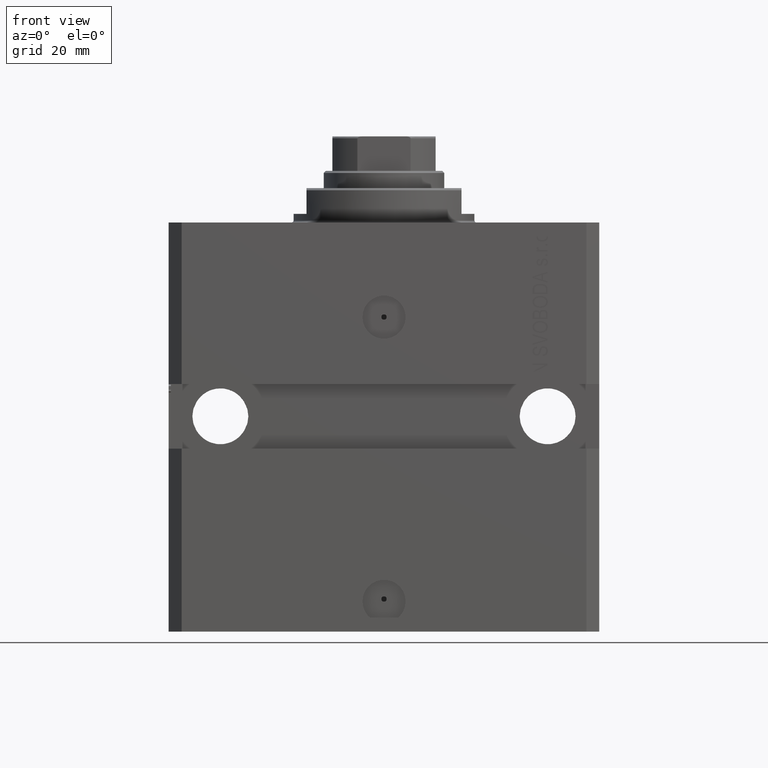
[diagram: clean part render]
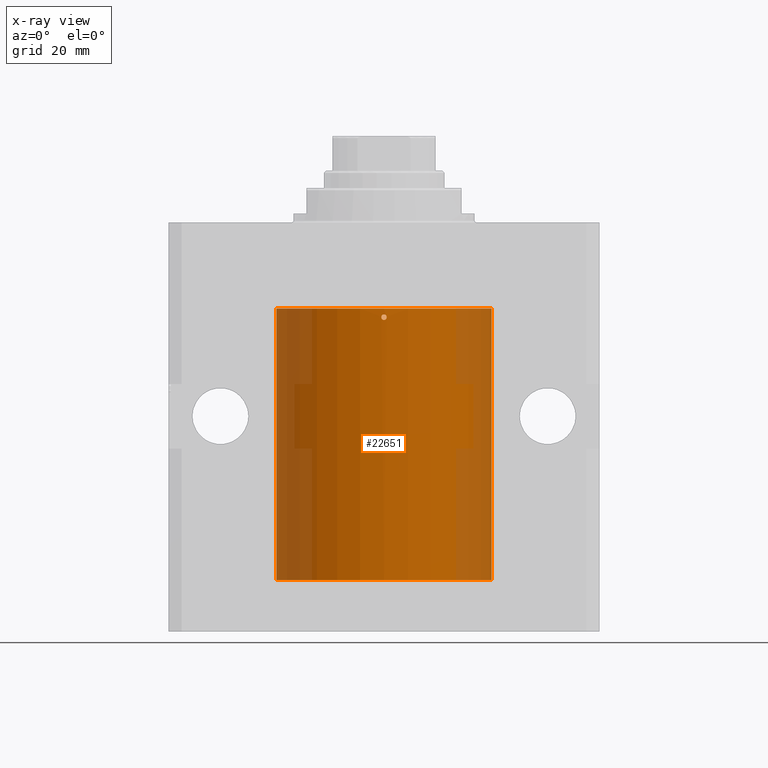
[diagram: x-ray — body ghosted, one internal face saturated and labeled with its STEP entity id]
A machine part, front view, then the same camera in x-ray: the body is ghosted and one INTERNAL B-rep face — a face not visible from any outside direction — is saturated and labeled: STEP entity #22651.
In plain terms, the highlighted cylindrical surface (partial cylindrical patch) has radius 25 mm, axis along (0, 0, 1).
Its self-contained STEP definition (entity closure, byte-faithful):
#742 = ORIENTED_EDGE ( 'NONE', *, *, #24995, .F. ) ;
#1251 = CARTESIAN_POINT ( 'NONE',  ( -0.3270940889136194629, -24.99812543354662608, -22.55695157226225334 ) ) ;
#1403 = CARTESIAN_POINT ( 'NONE',  ( -24.99812796309118568, -0.3269516851027323145, -24.44290468877020572 ) ) ;
#1474 = CARTESIAN_POINT ( 'NONE',  ( -0.1653718335039358056, -24.99999654101612734, -22.62486164059664162 ) ) ;
#2262 = ORIENTED_EDGE ( 'NONE', *, *, #20033, .T. ) ;
#2678 = CARTESIAN_POINT ( 'NONE',  ( -25.00000000000000000, 3.061616997868383043E-15, -20.00000000000000355 ) ) ;
#3501 = EDGE_CURVE ( 'NONE', #23878, #25838, #16299, .T. ) ;
#3665 = VERTEX_POINT ( 'NONE', #35559 ) ;
#3675 = CARTESIAN_POINT ( 'NONE',  ( 0.3265116753712065112, -24.99813393277699092, -21.44266951018309086 ) ) ;
#3941 = DIRECTION ( 'NONE',  ( -0.000000000000000000, -0.000000000000000000, 1.000000000000000000 ) ) ;
#4525 = VERTEX_POINT ( 'NONE', #39188 ) ;
#4584 = CARTESIAN_POINT ( 'NONE',  ( -24.99218973898648599, -0.6248616403601042757, -25.16537183352544105 ) ) ;
#4591 = VERTEX_POINT ( 'NONE', #13495 ) ;
#4882 = CARTESIAN_POINT ( 'NONE',  ( 0.5570953143439697497, -24.99405892729454237, -22.32695168018171472 ) ) ;
#4903 = DIRECTION ( 'NONE',  ( 0.000000000000000000, 0.000000000000000000, 1.000000000000000000 ) ) ;
#5083 = B_SPLINE_CURVE_WITH_KNOTS ( 'NONE', 3,
 ( #27090, #20499, #31166, #24127, #20932, #3675, #40940, #37751, #24346, #10270, #17530, #44565 ),
 .UNSPECIFIED., .F., .F.,
 ( 4, 2, 2, 2, 2, 4 ),
 ( 0.000000000000000000, 0.0002442639706702973840, 0.0004885279413405947679, 0.0009770558826811897527, 0.001465583824021784954, 0.001954111765362379939 ),
 .UNSPECIFIED. ) ;
#5686 = DIRECTION ( 'NONE',  ( 1.000000000000000000, 0.000000000000000000, 0.000000000000000000 ) ) ;
#5980 = CIRCLE ( 'NONE', #20506, 25.00000000000000000 ) ;
#6609 = VERTEX_POINT ( 'NONE', #22209 ) ;
#7117 = LINE ( 'NONE', #32107, #31391 ) ;
#8056 = CARTESIAN_POINT ( 'NONE',  ( 0.3261607912900677531, -24.99813905050856278, -22.55755872216537483 ) ) ;
#8429 = CARTESIAN_POINT ( 'NONE',  ( 0.000000000000000000, 0.000000000000000000, -20.00000000000000355 ) ) ;
#8949 = CARTESIAN_POINT ( 'NONE',  ( -24.99218973898648599, -0.6248616403601170433, -80.66537183352545526 ) ) ;
#9167 = CARTESIAN_POINT ( 'NONE',  ( -24.99404783808660824, -0.5575587241817657747, -80.17383921254298684 ) ) ;
#10270 = CARTESIAN_POINT ( 'NONE',  ( -0.5585560956114299369, -24.99403214699895059, -21.67461672201897827 ) ) ;
#11238 = CARTESIAN_POINT ( 'NONE',  ( -0.5574119818257227132, -24.99405044439276580, -22.32630887110948592 ) ) ;
#11703 = ORIENTED_EDGE ( 'NONE', *, *, #17359, .T. ) ;
#11840 = DIRECTION ( 'NONE',  ( 0.000000000000000000, 0.000000000000000000, 1.000000000000000000 ) ) ;
#11923 = CARTESIAN_POINT ( 'NONE',  ( -0.6250000000032718273, -24.99218627891517386, -21.99999999999966960 ) ) ;
#12413 = LINE ( 'NONE', #16484, #42706 ) ;
#12584 = CARTESIAN_POINT ( 'NONE',  ( -24.99218282981962247, -0.6251379207535847637, -80.33567564710916997 ) ) ;
#12670 = DIRECTION ( 'NONE',  ( -0.000000000000000000, -0.000000000000000000, 1.000000000000000000 ) ) ;
#13094 = EDGE_CURVE ( 'NONE', #33740, #39954, #7117, .T. ) ;
#13495 = CARTESIAN_POINT ( 'NONE',  ( 25.00000000000000000, 0.000000000000000000, -20.00000000000000355 ) ) ;
#14023 = CARTESIAN_POINT ( 'NONE',  ( -0.6250000000032718273, -24.99218627891517386, -21.99999999999966960 ) ) ;
#14831 = ORIENTED_EDGE ( 'NONE', *, *, #34940, .T. ) ;
#14965 = B_SPLINE_CURVE_WITH_KNOTS ( 'NONE', 3,
 ( #43029, #36438, #16215, #22590, #8949, #12584, #9167, #25774, #39622, #25998 ),
 .UNSPECIFIED., .F., .F.,
 ( 4, 2, 2, 2, 4 ),
 ( 0.001954111766881344581, 0.002442529193076335009, 0.002930946619271325871, 0.003419364045466316733, 0.003907781471661307161 ),
 .UNSPECIFIED. ) ;
#15485 = CARTESIAN_POINT ( 'NONE',  ( -25.00000000000000711, -0.1651503688830677219, -24.37500000000000355 ) ) ;
#15679 = AXIS2_PLACEMENT_3D ( 'NONE', #43054, #4903, #18761 ) ;
#16215 = CARTESIAN_POINT ( 'NONE',  ( -24.99813644420120795, -0.3263088753891781324, -81.05741197928196584 ) ) ;
#16299 = LINE ( 'NONE', #30152, #36358 ) ;
#16484 = CARTESIAN_POINT ( 'NONE',  ( 25.00000000000000000, 0.000000000000000000, -83.09999999999999432 ) ) ;
#17359 = EDGE_CURVE ( 'NONE', #25838, #4525, #14965, .T. ) ;
#17530 = CARTESIAN_POINT ( 'NONE',  ( -0.6249999999998580025, -24.99218627891526623, -21.83683279671957678 ) ) ;
#18212 = VERTEX_POINT ( 'NONE', #14023 ) ;
#18322 = CARTESIAN_POINT ( 'NONE',  ( -25.00000000000000000, 3.061616997868383043E-15, -83.09999999999999432 ) ) ;
#18439 = CARTESIAN_POINT ( 'NONE',  ( -24.99404783808660824, -0.5575587241817427930, -24.67383921254299750 ) ) ;
#18761 = DIRECTION ( 'NONE',  ( 1.000000000000000000, 0.000000000000000000, 0.000000000000000000 ) ) ;
#18892 = CARTESIAN_POINT ( 'NONE',  ( -24.99406145684571356, -0.5569515746258809630, -25.32709408482347158 ) ) ;
#19915 = B_SPLINE_CURVE_WITH_KNOTS ( 'NONE', 3,
 ( #11923, #28729, #11238, #1251, #1474, #25778, #8056, #4882, #37033, #21914 ),
 .UNSPECIFIED., .F., .F.,
 ( 4, 2, 2, 2, 4 ),
 ( 0.001954111765362379939, 0.002442529191052401905, 0.002930946616742423003, 0.003419364042432444968, 0.003907781468122466066 ),
 .UNSPECIFIED. ) ;
#20033 = EDGE_CURVE ( 'NONE', #4525, #36947, #28081, .T. ) ;
#20499 = CARTESIAN_POINT ( 'NONE',  ( 0.6250000000000028866, -24.99218627891526268, -21.91740613087400291 ) ) ;
#20506 = AXIS2_PLACEMENT_3D ( 'NONE', #8429, #11840, #5686 ) ;
#20627 = VECTOR ( 'NONE', #21727, 1000.000000000000000 ) ;
#20856 = EDGE_CURVE ( 'NONE', #36947, #33740, #22963, .T. ) ;
#20932 = CARTESIAN_POINT ( 'NONE',  ( 0.4995380721546434644, -24.99507529921185167, -21.61563396127344205 ) ) ;
#21727 = DIRECTION ( 'NONE',  ( -0.000000000000000000, -0.000000000000000000, 1.000000000000000000 ) ) ;
#21842 = CARTESIAN_POINT ( 'NONE',  ( -25.00000000000000355, -0.1631302912503579117, -25.62500000000015632 ) ) ;
#21914 = CARTESIAN_POINT ( 'NONE',  ( 0.6250000000000031086, -24.99218627891525912, -22.00000000000000000 ) ) ;
#22209 = CARTESIAN_POINT ( 'NONE',  ( 25.00000000000000000, 0.000000000000000000, -83.09999999999999432 ) ) ;
#22590 = CARTESIAN_POINT ( 'NONE',  ( -24.99406145684571001, -0.5569515746258932865, -80.82709408482347158 ) ) ;
#22651 = ADVANCED_FACE ( 'NONE', ( #31599, #38627 ), #41380, .F. ) ;
#22963 = B_SPLINE_CURVE_WITH_KNOTS ( 'NONE', 3,
 ( #32515, #21842, #35685, #18892, #4584, #32740, #18439, #1403, #15485, #29341 ),
 .UNSPECIFIED., .F., .F.,
 ( 4, 2, 2, 2, 4 ),
 ( 0.001954111766881348917, 0.002442529193076336310, 0.002930946619271323269, 0.003419364045466310661, 0.003907781471661297620 ),
 .UNSPECIFIED. ) ;
#23878 = VERTEX_POINT ( 'NONE', #30360 ) ;
#24127 = CARTESIAN_POINT ( 'NONE',  ( 0.5459809831415634029, -24.99405709131112019, -21.68496967896864192 ) ) ;
#24346 = CARTESIAN_POINT ( 'NONE',  ( -0.3251155636494555412, -24.99815848712529132, -21.44128803502407266 ) ) ;
#24995 = EDGE_CURVE ( 'NONE', #23878, #6609, #44679, .T. ) ;
#25774 = CARTESIAN_POINT ( 'NONE',  ( -24.99812796309119634, -0.3269516851027545745, -79.94290468877019862 ) ) ;
#25778 = CARTESIAN_POINT ( 'NONE',  ( 0.1643243546629042096, -25.00000344801174990, -22.62513792051850103 ) ) ;
#25838 = VERTEX_POINT ( 'NONE', #36444 ) ;
#25998 = CARTESIAN_POINT ( 'NONE',  ( -25.00000000000000000, -2.172643007029407462E-14, -79.87500000000000000 ) ) ;
#26171 = ORIENTED_EDGE ( 'NONE', *, *, #20856, .T. ) ;
#26769 = CARTESIAN_POINT ( 'NONE',  ( -25.00000000000000000, -9.603917560234690571E-15, -24.37500000000000000 ) ) ;
#27090 = CARTESIAN_POINT ( 'NONE',  ( 0.6250000000000031086, -24.99218627891525912, -22.00000000000000000 ) ) ;
#27304 = CARTESIAN_POINT ( 'NONE',  ( 0.000000000000000000, 0.000000000000000000, -83.09999999999999432 ) ) ;
#27397 = ORIENTED_EDGE ( 'NONE', *, *, #42060, .T. ) ;
#28081 = LINE ( 'NONE', #18322, #20627 ) ;
#28665 = ORIENTED_EDGE ( 'NONE', *, *, #31923, .F. ) ;
#28729 = CARTESIAN_POINT ( 'NONE',  ( -0.6250000000001371125, -24.99218627891525912, -22.16313029130749968 ) ) ;
#29341 = CARTESIAN_POINT ( 'NONE',  ( -25.00000000000000000, -9.603917560234690571E-15, -24.37500000000000000 ) ) ;
#30152 = CARTESIAN_POINT ( 'NONE',  ( -25.00000000000000000, 3.061616997868383043E-15, -83.09999999999999432 ) ) ;
#30360 = CARTESIAN_POINT ( 'NONE',  ( -25.00000000000000000, 3.061616997868383043E-15, -83.09999999999999432 ) ) ;
#31158 = DIRECTION ( 'NONE',  ( -0.000000000000000000, -0.000000000000000000, 1.000000000000000000 ) ) ;
#31166 = CARTESIAN_POINT ( 'NONE',  ( 0.6087374094229538457, -24.99260738466560028, -21.83635983533870473 ) ) ;
#31180 = ORIENTED_EDGE ( 'NONE', *, *, #3501, .T. ) ;
#31391 = VECTOR ( 'NONE', #3941, 1000.000000000000000 ) ;
#31599 = FACE_BOUND ( 'NONE', #32253, .T. ) ;
#31923 = EDGE_CURVE ( 'NONE', #6609, #4591, #12413, .T. ) ;
#32107 = CARTESIAN_POINT ( 'NONE',  ( -25.00000000000000000, 3.061616997868383043E-15, -83.09999999999999432 ) ) ;
#32253 = EDGE_LOOP ( 'NONE', ( #35933, #14831 ) ) ;
#32515 = CARTESIAN_POINT ( 'NONE',  ( -25.00000000000008171, 3.517566451145503275E-13, -25.62500000000326850 ) ) ;
#32740 = CARTESIAN_POINT ( 'NONE',  ( -24.99218282981962957, -0.6251379207535647797, -24.83567564710915576 ) ) ;
#32860 = DIRECTION ( 'NONE',  ( -0.000000000000000000, -0.000000000000000000, 1.000000000000000000 ) ) ;
#33740 = VERTEX_POINT ( 'NONE', #26769 ) ;
#34337 = DIRECTION ( 'NONE',  ( 1.000000000000000000, 0.000000000000000000, 0.000000000000000000 ) ) ;
#34940 = EDGE_CURVE ( 'NONE', #18212, #3665, #19915, .T. ) ;
#35559 = CARTESIAN_POINT ( 'NONE',  ( 0.6250000000000031086, -24.99218627891525912, -22.00000000000000000 ) ) ;
#35685 = CARTESIAN_POINT ( 'NONE',  ( -24.99813644420121506, -0.3263088753891703053, -25.55741197928193387 ) ) ;
#35933 = ORIENTED_EDGE ( 'NONE', *, *, #38765, .T. ) ;
#36358 = VECTOR ( 'NONE', #12670, 1000.000000000000000 ) ;
#36438 = CARTESIAN_POINT ( 'NONE',  ( -24.99999999999999645, -0.1631302912503605484, -81.12500000000012790 ) ) ;
#36444 = CARTESIAN_POINT ( 'NONE',  ( -25.00000000000008171, 3.517566579358498221E-13, -81.12500000000328271 ) ) ;
#36947 = VERTEX_POINT ( 'NONE', #39078 ) ;
#37033 = CARTESIAN_POINT ( 'NONE',  ( 0.6250000000000029976, -24.99218627891525202, -22.16515036919116355 ) ) ;
#37751 = CARTESIAN_POINT ( 'NONE',  ( -0.1628443292698670553, -25.00000144574358174, -21.37494217025369991 ) ) ;
#38627 = FACE_OUTER_BOUND ( 'NONE', #39456, .T. ) ;
#38765 = EDGE_CURVE ( 'NONE', #3665, #18212, #5083, .T. ) ;
#39078 = CARTESIAN_POINT ( 'NONE',  ( -25.00000000000008171, 3.517566451145503275E-13, -25.62500000000326850 ) ) ;
#39188 = CARTESIAN_POINT ( 'NONE',  ( -25.00000000000000000, -2.172643007029407462E-14, -79.87500000000000000 ) ) ;
#39456 = EDGE_LOOP ( 'NONE', ( #742, #31180, #11703, #2262, #26171, #40506, #27397, #28665 ) ) ;
#39622 = CARTESIAN_POINT ( 'NONE',  ( -25.00000000000000355, -0.1651503688830781857, -79.87500000000000000 ) ) ;
#39954 = VERTEX_POINT ( 'NONE', #2678 ) ;
#40506 = ORIENTED_EDGE ( 'NONE', *, *, #13094, .T. ) ;
#40940 = CARTESIAN_POINT ( 'NONE',  ( 0.1632879307331824292, -24.99999855228861989, -21.37505790845920473 ) ) ;
#41380 = CYLINDRICAL_SURFACE ( 'NONE', #44611, 25.00000000000000000 ) ;
#42060 = EDGE_CURVE ( 'NONE', #39954, #4591, #5980, .T. ) ;
#42706 = VECTOR ( 'NONE', #32860, 1000.000000000000000 ) ;
#43029 = CARTESIAN_POINT ( 'NONE',  ( -25.00000000000008171, 3.517566579358498221E-13, -81.12500000000328271 ) ) ;
#43054 = CARTESIAN_POINT ( 'NONE',  ( 0.000000000000000000, 0.000000000000000000, -83.09999999999999432 ) ) ;
#44565 = CARTESIAN_POINT ( 'NONE',  ( -0.6250000000032718273, -24.99218627891517386, -21.99999999999966960 ) ) ;
#44611 = AXIS2_PLACEMENT_3D ( 'NONE', #27304, #31158, #34337 ) ;
#44679 = CIRCLE ( 'NONE', #15679, 25.00000000000000000 ) ;